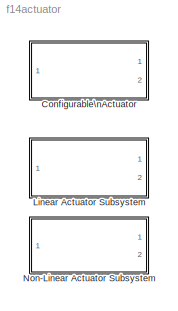
MODEL f14actuator
KIND library
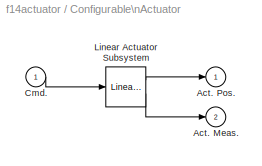
BLOCK [SubSystem] Configurable\nActuator
  BlockChoice = Linear Actuator Subsystem
  MemberBlocks = Linear Actuator Subsystem,Non-Linear Actuator Subsystem
  MinAlgLoopOccurrences = off
  Ports = [1, 2]
  PropExecContextAcrossSSBoundary = on
  RTWSystemCode = Auto
  TemplateBlock = self
  TreatAsAtomicUnit = off
BLOCK [Outport] Configurable\nActuator/Act. Meas.
  IconDisplay = Port number
  Port = 2
BLOCK [Outport] Configurable\nActuator/Act. Pos.
  IconDisplay = Port number
BLOCK [Inport] Configurable\nActuator/Cmd.
  IconDisplay = Port number
  LatchInput = off
  Port = 1
BLOCK [Reference] Configurable\nActuator/Linear Actuator Subsystem  REF=f14actuator/Linear Actuator Subsystem  (lib defined in mdl_813533b40b07)
  Ports = [1, 2]
  SourceBlock = f14actuator/Linear Actuator Subsystem
  SourceType = SubSystem
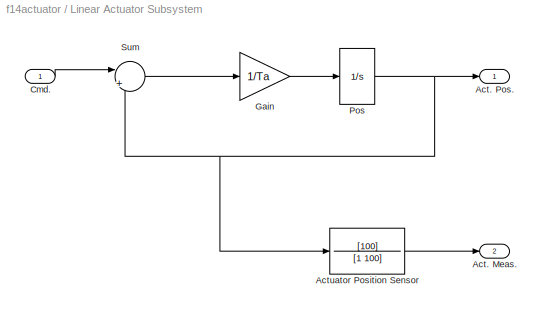
BLOCK [SubSystem] Linear Actuator Subsystem
  MaskDisplay = text(0.5,0.5,'[Linear]','horizontalAlignment','center');
  MaskIconFrame = on
  MaskIconOpaque = off
  MaskIconRotate = none
  MaskIconUnits = normalized
  MinAlgLoopOccurrences = off
  Ports = [1, 2]
  PropExecContextAcrossSSBoundary = on
  RTWSystemCode = Auto
  TreatAsAtomicUnit = off
BLOCK [Outport] Linear Actuator Subsystem/Act. Meas.
  IconDisplay = Port number
  InitialOutput = 0
  Port = 2
BLOCK [Outport] Linear Actuator Subsystem/Act. Pos.
  IconDisplay = Port number
  InitialOutput = 0
BLOCK [TransferFcn] Linear Actuator Subsystem/Actuator Position Sensor
  Denominator = [1 100]
  Numerator = [100]
BLOCK [Inport] Linear Actuator Subsystem/Cmd.
  IconDisplay = Port number
  LatchInput = off
  Port = 1
BLOCK [Gain] Linear Actuator Subsystem/Gain
  Gain = 1/Ta
BLOCK [Integrator] Linear Actuator Subsystem/Pos
  LowerSaturationLimit = -pi*45/180
  Ports = [1, 1]
  UpperSaturationLimit = pi*45/180
BLOCK [Sum] Linear Actuator Subsystem/Sum
  IconShape = round
  Inputs = |+-
  Ports = [2, 1]
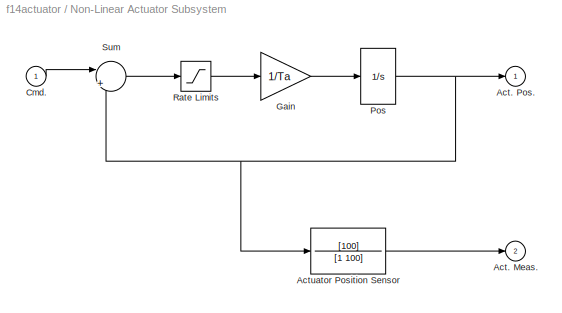
BLOCK [SubSystem] Non-Linear Actuator Subsystem
  MaskDisplay = text(0.5,0.5,'[Non-Linear]','horizontalAlignment','center')
  MaskIconFrame = on
  MaskIconOpaque = off
  MaskIconRotate = none
  MaskIconUnits = normalized
  MinAlgLoopOccurrences = off
  Ports = [1, 2]
  PropExecContextAcrossSSBoundary = on
  RTWSystemCode = Auto
  TreatAsAtomicUnit = off
BLOCK [Outport] Non-Linear Actuator Subsystem/Act. Meas.
  IconDisplay = Port number
  InitialOutput = 0
  Port = 2
BLOCK [Outport] Non-Linear Actuator Subsystem/Act. Pos.
  IconDisplay = Port number
  InitialOutput = 0
BLOCK [TransferFcn] Non-Linear Actuator Subsystem/Actuator Position Sensor
  Denominator = [1 100]
  Numerator = [100]
BLOCK [Inport] Non-Linear Actuator Subsystem/Cmd.
  IconDisplay = Port number
  LatchInput = off
  Port = 1
BLOCK [Gain] Non-Linear Actuator Subsystem/Gain
  Gain = 1/Ta
BLOCK [Integrator] Non-Linear Actuator Subsystem/Pos
  LimitOutput = on
  LowerSaturationLimit = -pi*45/180
  Ports = [1, 1]
  UpperSaturationLimit = pi*45/180
BLOCK [Saturate] Non-Linear Actuator Subsystem/Rate Limits
BLOCK [Sum] Non-Linear Actuator Subsystem/Sum
  IconShape = round
  Inputs = |+-
  Ports = [2, 1]
LINE Configurable\nActuator/Cmd.:1 -> Configurable\nActuator/Linear Actuator Subsystem:1
LINE Configurable\nActuator/Linear Actuator Subsystem:1 -> Configurable\nActuator/Act. Pos.:1
LINE Configurable\nActuator/Linear Actuator Subsystem:2 -> Configurable\nActuator/Act. Meas.:1
LINE Linear Actuator Subsystem/Actuator Position Sensor:1 -> Linear Actuator Subsystem/Act. Meas.:1
LINE Linear Actuator Subsystem/Cmd.:1 -> Linear Actuator Subsystem/Sum:1
LINE Linear Actuator Subsystem/Gain:1 -> Linear Actuator Subsystem/Pos:1
NET Linear Actuator Subsystem/Pos:1 -> Linear Actuator Subsystem/Act. Pos.:1, Linear Actuator Subsystem/Actuator Position Sensor:1, Linear Actuator Subsystem/Sum:2
LINE Linear Actuator Subsystem/Sum:1 -> Linear Actuator Subsystem/Gain:1
LINE Non-Linear Actuator Subsystem/Actuator Position Sensor:1 -> Non-Linear Actuator Subsystem/Act. Meas.:1
LINE Non-Linear Actuator Subsystem/Cmd.:1 -> Non-Linear Actuator Subsystem/Sum:1
LINE Non-Linear Actuator Subsystem/Gain:1 -> Non-Linear Actuator Subsystem/Pos:1
NET Non-Linear Actuator Subsystem/Pos:1 -> Non-Linear Actuator Subsystem/Act. Pos.:1, Non-Linear Actuator Subsystem/Actuator Position Sensor:1, Non-Linear Actuator Subsystem/Sum:2
LINE Non-Linear Actuator Subsystem/Rate Limits:1 -> Non-Linear Actuator Subsystem/Gain:1
LINE Non-Linear Actuator Subsystem/Sum:1 -> Non-Linear Actuator Subsystem/Rate Limits:1
note: NET lines group one-source signal fan-out (src -> all destinations, sorted); 1:1 wires keep LINE
